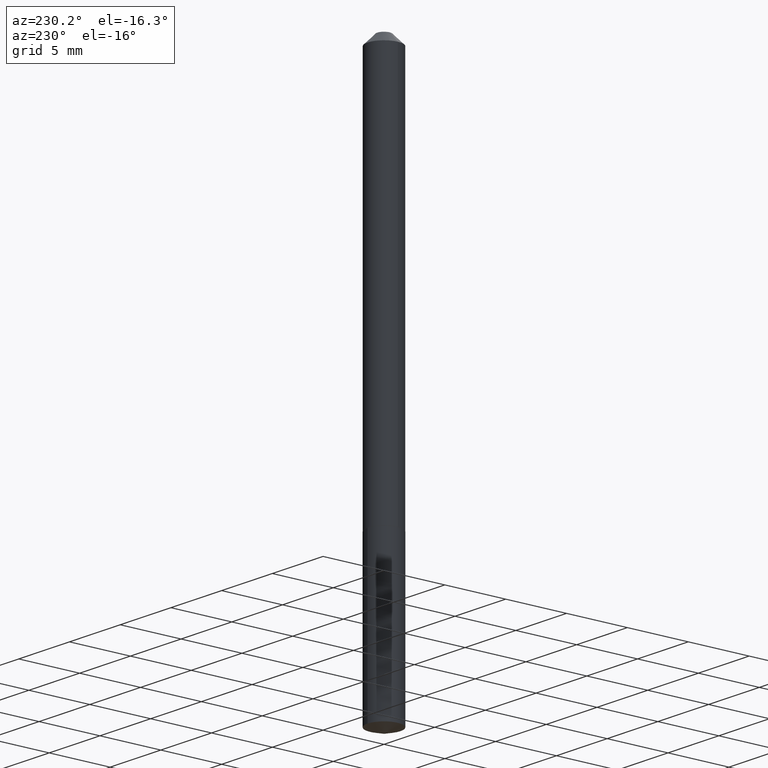
[diagram: clean part render]
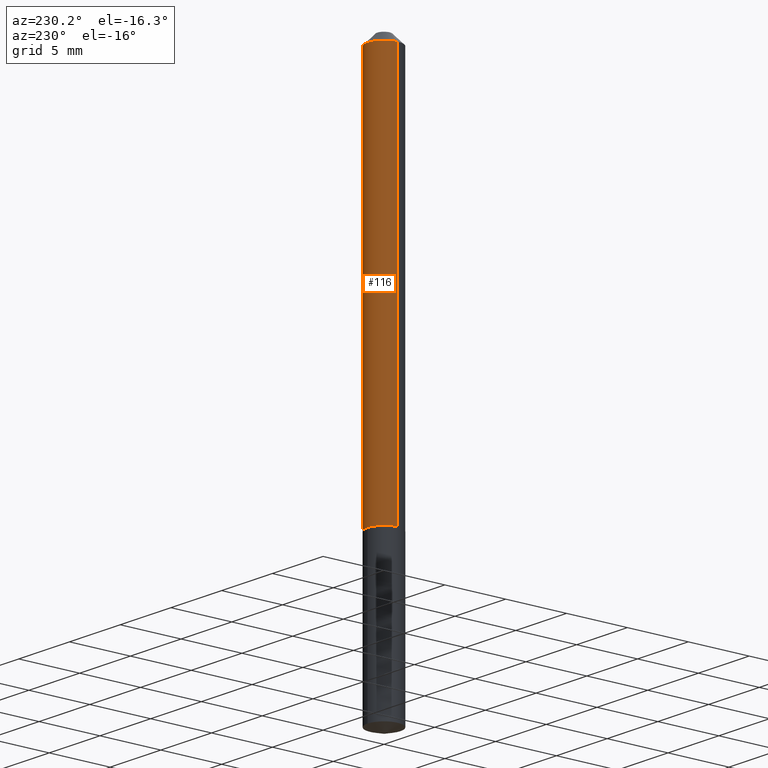
[diagram: same view with one face highlighted and labeled with its STEP entity id]
A machine part, auxiliary view. The second image highlights one B-rep face of the part: STEP entity #116.
In plain terms, the highlighted cylindrical surface (edge-blend (fillet) strip) has radius 1.35 mm, axis along (-0, 0, 1).
Its self-contained STEP definition (entity closure, byte-faithful):
#2 = DIRECTION ( 'NONE',  ( 1.000000000000000000, -6.982962677686274599E-15, 0.000000000000000000 ) ) ;
#18 = DIRECTION ( 'NONE',  ( -2.445468806185136597E-29, 3.491481338843145583E-15, 1.000000000000000000 ) ) ;
#24 = CARTESIAN_POINT ( 'NONE',  ( 0.05315000000000016933, -4.864331801276270815E-15, -1.286899999999999933 ) ) ;
#32 = DIRECTION ( 'NONE',  ( -2.445468806185136597E-29, 3.491481338843145583E-15, 1.000000000000000000 ) ) ;
#34 = LINE ( 'NONE', #133, #167 ) ;
#39 = CARTESIAN_POINT ( 'NONE',  ( -0.05315000000000016933, -4.115533870900749124E-15, -1.286899999999999933 ) ) ;
#40 = CARTESIAN_POINT ( 'NONE',  ( 7.642090019328600035E-31, -1.091087918388489897E-16, -0.03125000000000020123 ) ) ;
#42 = EDGE_CURVE ( 'NONE', #156, #197, #34, .T. ) ;
#44 = VERTEX_POINT ( 'NONE', #75 ) ;
#57 = DIRECTION ( 'NONE',  ( -2.445468806185136877E-29, 3.491481338843145188E-15, 1.000000000000000000 ) ) ;
#63 = ORIENTED_EDGE ( 'NONE', *, *, #42, .F. ) ;
#75 = CARTESIAN_POINT ( 'NONE',  ( -0.05315000000000000280, -1.923494599341550802E-15, -0.03125000000000020123 ) ) ;
#84 = CIRCLE ( 'NONE', #374, 0.05315000000000016933 ) ;
#85 = DIRECTION ( 'NONE',  ( -2.445468806185136877E-29, 3.491481338843145188E-15, 1.000000000000000000 ) ) ;
#103 = EDGE_CURVE ( 'NONE', #197, #44, #357, .T. ) ;
#110 = EDGE_CURVE ( 'NONE', #311, #44, #126, .T. ) ;
#116 = ADVANCED_FACE ( 'NONE', ( #149 ), #142, .T. ) ;
#126 = LINE ( 'NONE', #277, #351 ) ;
#127 = ORIENTED_EDGE ( 'NONE', *, *, #103, .F. ) ;
#133 = CARTESIAN_POINT ( 'NONE',  ( 0.05315000000000008606, -3.711444663190256610E-16, 2.591687956335544229E-30 ) ) ;
#142 = CYLINDRICAL_SURFACE ( 'NONE', #200, 0.05315000000000008606 ) ;
#149 = FACE_OUTER_BOUND ( 'NONE', #278, .T. ) ;
#156 = VERTEX_POINT ( 'NONE', #24 ) ;
#167 = VECTOR ( 'NONE', #85, 39.37007874015748143 ) ;
#197 = VERTEX_POINT ( 'NONE', #309 ) ;
#200 = AXIS2_PLACEMENT_3D ( 'NONE', #230, #18, #380 ) ;
#202 = ORIENTED_EDGE ( 'NONE', *, *, #324, .T. ) ;
#230 = CARTESIAN_POINT ( 'NONE',  ( 0.000000000000000000, 0.000000000000000000, 0.000000000000000000 ) ) ;
#277 = CARTESIAN_POINT ( 'NONE',  ( -0.05315000000000008606, 3.776534640564938603E-16, -2.614414000470486733E-30 ) ) ;
#278 = EDGE_LOOP ( 'NONE', ( #202, #348, #127, #63 ) ) ;
#299 = DIRECTION ( 'NONE',  ( -2.445468806185136597E-29, 3.491481338843145583E-15, 1.000000000000000000 ) ) ;
#309 = CARTESIAN_POINT ( 'NONE',  ( 0.05315000000000000280, -4.802532581578741700E-16, -0.03125000000000020123 ) ) ;
#311 = VERTEX_POINT ( 'NONE', #39 ) ;
#319 = DIRECTION ( 'NONE',  ( 1.000000000000000000, -6.982962677686267499E-15, 0.000000000000000000 ) ) ;
#324 = EDGE_CURVE ( 'NONE', #156, #311, #84, .T. ) ;
#325 = CARTESIAN_POINT ( 'NONE',  ( 3.147073806679652455E-29, -4.493187334957244168E-15, -1.286899999999999933 ) ) ;
#329 = AXIS2_PLACEMENT_3D ( 'NONE', #40, #299, #319 ) ;
#348 = ORIENTED_EDGE ( 'NONE', *, *, #110, .T. ) ;
#351 = VECTOR ( 'NONE', #57, 39.37007874015748143 ) ;
#357 = CIRCLE ( 'NONE', #329, 0.05315000000000000280 ) ;
#374 = AXIS2_PLACEMENT_3D ( 'NONE', #325, #32, #2 ) ;
#380 = DIRECTION ( 'NONE',  ( 1.000000000000000000, -6.982962677686266711E-15, 4.876176775795936353E-29 ) ) ;